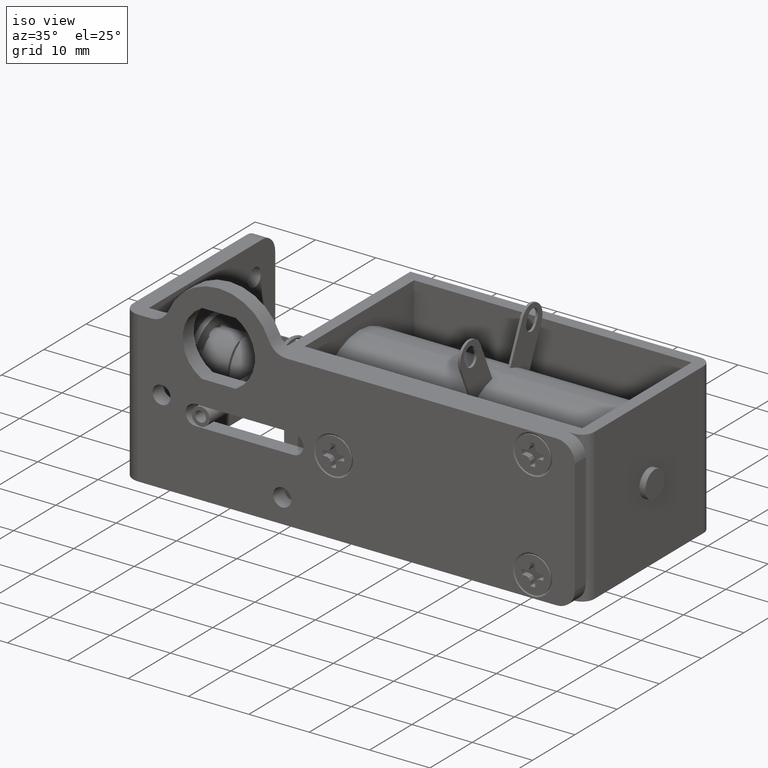
[diagram: clean part render]
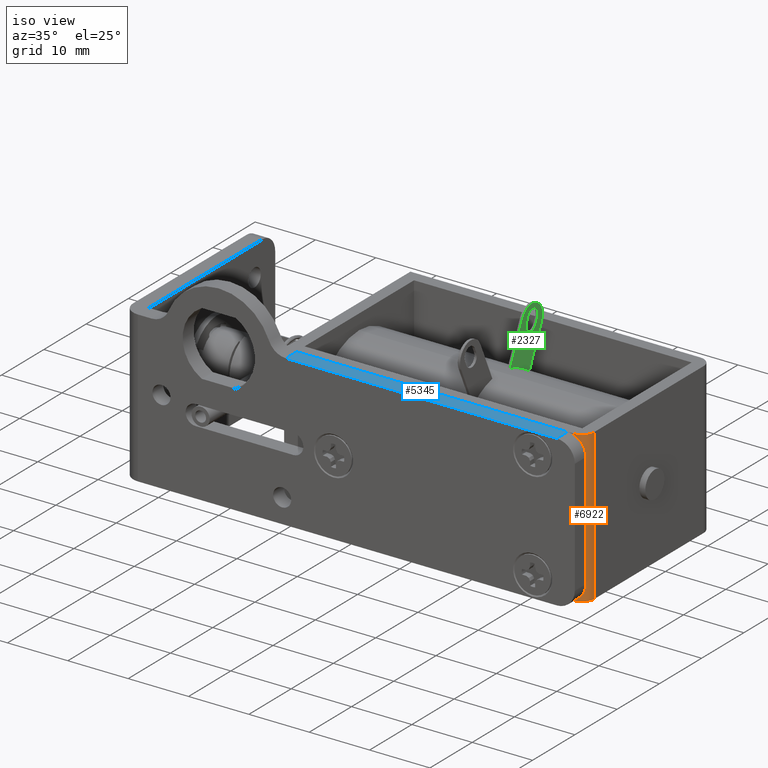
[diagram: same view with three faces highlighted in distinct colors, each labeled with its STEP entity id]
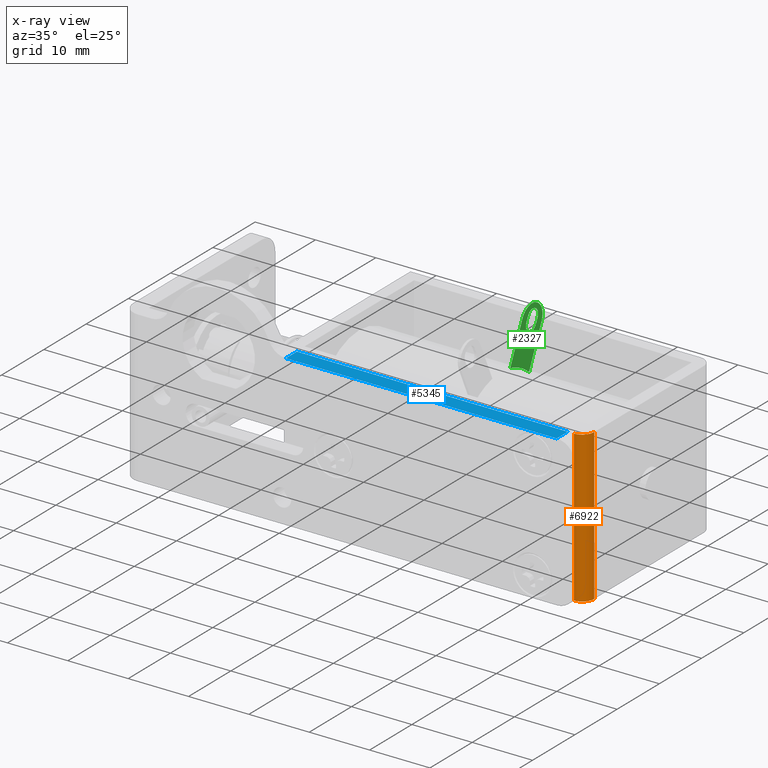
[diagram: x-ray of the same camera — body ghosted, the three highlighted faces saturated]
A machine part, iso view with three faces highlighted in distinct colors.
The next image is the same camera in x-ray (body ghosted, the three faces saturated) — at least one of them is partly hidden behind the body in this view.
Their STEP definitions:

[orange] entity #6922 — the highlighted cylindrical surface (edge-blend (fillet) strip) has radius 2 mm, axis along (0, 0, 1).
#251 = EDGE_CURVE ( 'NONE', #324, #4198, #955, .T. ) ;
#324 = VERTEX_POINT ( 'NONE', #1913 ) ;
#348 = CARTESIAN_POINT ( 'NONE',  ( 59.00000000000000000, 4.600000000000109800, -23.50000000000000000 ) ) ;
#844 = CARTESIAN_POINT ( 'NONE',  ( 59.00000000000000000, 4.600000000000109800, -998.5000000000000000 ) ) ;
#849 = VECTOR ( 'NONE', #4538, 1000.000000000000000 ) ;
#955 = LINE ( 'NONE', #4747, #7416 ) ;
#979 = EDGE_CURVE ( 'NONE', #5466, #2408, #2476, .T. ) ;
#1913 = CARTESIAN_POINT ( 'NONE',  ( 57.00000000000000000, 2.600000000000110200, -23.50000000000000000 ) ) ;
#2217 = DIRECTION ( 'NONE',  ( -0.0000000000000000000, -0.0000000000000000000, 1.000000000000000000 ) ) ;
#2231 = EDGE_LOOP ( 'NONE', ( #3943, #3107, #4294, #5773 ) ) ;
#2408 = VERTEX_POINT ( 'NONE', #4467 ) ;
#2476 = LINE ( 'NONE', #844, #849 ) ;
#3007 = AXIS2_PLACEMENT_3D ( 'NONE', #6852, #3208, #7455 ) ;
#3107 = ORIENTED_EDGE ( 'NONE', *, *, #251, .F. ) ;
#3208 = DIRECTION ( 'NONE',  ( -0.0000000000000000000, -0.0000000000000000000, 1.000000000000000000 ) ) ;
#3283 = CIRCLE ( 'NONE', #3007, 2.000000000000001800 ) ;
#3943 = ORIENTED_EDGE ( 'NONE', *, *, #4614, .F. ) ;
#4197 = DIRECTION ( 'NONE',  ( 0.0000000000000000000, 0.0000000000000000000, 1.000000000000000000 ) ) ;
#4198 = VERTEX_POINT ( 'NONE', #5236 ) ;
#4294 = ORIENTED_EDGE ( 'NONE', *, *, #6889, .T. ) ;
#4467 = CARTESIAN_POINT ( 'NONE',  ( 59.00000000000000000, 4.600000000000109800, 1.499999999999946000 ) ) ;
#4538 = DIRECTION ( 'NONE',  ( 0.0000000000000000000, 0.0000000000000000000, 1.000000000000000000 ) ) ;
#4554 = AXIS2_PLACEMENT_3D ( 'NONE', #5869, #2217, #6469 ) ;
#4614 = EDGE_CURVE ( 'NONE', #4198, #2408, #6671, .T. ) ;
#4747 = CARTESIAN_POINT ( 'NONE',  ( 57.00000000000000000, 2.600000000000110200, -998.5000000000000000 ) ) ;
#5068 = CARTESIAN_POINT ( 'NONE',  ( 57.00000000000000000, 4.600000000000109800, -998.5000000000000000 ) ) ;
#5236 = CARTESIAN_POINT ( 'NONE',  ( 57.00000000000000000, 2.600000000000110200, 1.499999999999946000 ) ) ;
#5466 = VERTEX_POINT ( 'NONE', #348 ) ;
#5773 = ORIENTED_EDGE ( 'NONE', *, *, #979, .T. ) ;
#5868 = AXIS2_PLACEMENT_3D ( 'NONE', #5068, #6879, #6267 ) ;
#5869 = CARTESIAN_POINT ( 'NONE',  ( 57.00000000000000000, 4.600000000000109800, 1.499999999999946000 ) ) ;
#5965 = CYLINDRICAL_SURFACE ( 'NONE', #5868, 2.000000000000001800 ) ;
#6148 = FACE_OUTER_BOUND ( 'NONE', #2231, .T. ) ;
#6267 = DIRECTION ( 'NONE',  ( 1.000000000000000000, 0.0000000000000000000, 0.0000000000000000000 ) ) ;
#6469 = DIRECTION ( 'NONE',  ( -1.000000000000000000, 0.0000000000000000000, 0.0000000000000000000 ) ) ;
#6671 = CIRCLE ( 'NONE', #4554, 2.000000000000001800 ) ;
#6852 = CARTESIAN_POINT ( 'NONE',  ( 57.00000000000000000, 4.600000000000109800, -23.50000000000000000 ) ) ;
#6879 = DIRECTION ( 'NONE',  ( 0.0000000000000000000, 0.0000000000000000000, 1.000000000000000000 ) ) ;
#6889 = EDGE_CURVE ( 'NONE', #324, #5466, #3283, .T. ) ;
#6922 = ADVANCED_FACE ( 'NONE', ( #6148 ), #5965, .T. ) ;
#7416 = VECTOR ( 'NONE', #4197, 1000.000000000000000 ) ;
#7455 = DIRECTION ( 'NONE',  ( -1.000000000000000000, 0.0000000000000000000, 0.0000000000000000000 ) ) ;

[blue] entity #5345 — the highlighted planar face has unit normal (0, 0, -1).
#265 = DIRECTION ( 'NONE',  ( -1.000000000000000000, 0.0000000000000000000, 0.0000000000000000000 ) ) ;
#344 = CARTESIAN_POINT ( 'NONE',  ( 11.12429784292036000, 2.600000000000044900, 1.500000000000000000 ) ) ;
#524 = ORIENTED_EDGE ( 'NONE', *, *, #778, .T. ) ;
#747 = VERTEX_POINT ( 'NONE', #3307 ) ;
#778 = EDGE_CURVE ( 'NONE', #3939, #7012, #5819, .T. ) ;
#995 = LINE ( 'NONE', #1425, #7277 ) ;
#1393 = VERTEX_POINT ( 'NONE', #344 ) ;
#1413 = DIRECTION ( 'NONE',  ( 0.0000000000000000000, -1.000000000000000000, 0.0000000000000000000 ) ) ;
#1425 = CARTESIAN_POINT ( 'NONE',  ( 0.0000000000000000000, 2.600000000000000100, 1.500000000000000000 ) ) ;
#1521 = CARTESIAN_POINT ( 'NONE',  ( 56.00000000000000000, 0.0000000000000000000, 1.500000000000000000 ) ) ;
#2184 = DIRECTION ( 'NONE',  ( 0.0000000000000000000, -1.000000000000000000, 0.0000000000000000000 ) ) ;
#2213 = VECTOR ( 'NONE', #2184, 1000.000000000000000 ) ;
#2365 = ORIENTED_EDGE ( 'NONE', *, *, #7807, .T. ) ;
#2414 = VECTOR ( 'NONE', #1413, 1000.000000000000000 ) ;
#2620 = EDGE_CURVE ( 'NONE', #747, #7012, #3826, .T. ) ;
#2786 = LINE ( 'NONE', #7471, #2414 ) ;
#2860 = AXIS2_PLACEMENT_3D ( 'NONE', #3316, #3940, #265 ) ;
#3307 = CARTESIAN_POINT ( 'NONE',  ( 56.00000000000000000, 2.600000000000044900, 1.500000000000000000 ) ) ;
#3316 = CARTESIAN_POINT ( 'NONE',  ( 11.12429800000000000, 1000.000000000000000, 1.500000000000000000 ) ) ;
#3382 = CARTESIAN_POINT ( 'NONE',  ( 56.00000000000000000, 1000.000000000000000, 1.500000000000000000 ) ) ;
#3515 = FACE_OUTER_BOUND ( 'NONE', #5995, .T. ) ;
#3826 = LINE ( 'NONE', #3382, #2213 ) ;
#3939 = VERTEX_POINT ( 'NONE', #7366 ) ;
#3940 = DIRECTION ( 'NONE',  ( 0.0000000000000000000, 0.0000000000000000000, -1.000000000000000000 ) ) ;
#4211 = VECTOR ( 'NONE', #4790, 1000.000000000000000 ) ;
#4790 = DIRECTION ( 'NONE',  ( 1.000000000000000000, -0.0000000000000000000, -0.0000000000000000000 ) ) ;
#5345 = ADVANCED_FACE ( 'NONE', ( #3515 ), #7526, .F. ) ;
#5419 = ORIENTED_EDGE ( 'NONE', *, *, #2620, .F. ) ;
#5819 = LINE ( 'NONE', #6512, #4211 ) ;
#5995 = EDGE_LOOP ( 'NONE', ( #5419, #6297, #2365, #524 ) ) ;
#6281 = DIRECTION ( 'NONE',  ( 1.000000000000000000, -0.0000000000000000000, -0.0000000000000000000 ) ) ;
#6297 = ORIENTED_EDGE ( 'NONE', *, *, #7303, .F. ) ;
#6512 = CARTESIAN_POINT ( 'NONE',  ( 0.0000000000000000000, 0.0000000000000000000, 1.500000000000000000 ) ) ;
#7012 = VERTEX_POINT ( 'NONE', #1521 ) ;
#7277 = VECTOR ( 'NONE', #6281, 1000.000000000000000 ) ;
#7303 = EDGE_CURVE ( 'NONE', #1393, #747, #995, .T. ) ;
#7366 = CARTESIAN_POINT ( 'NONE',  ( 11.12429784292036000, 0.0000000000000000000, 1.500000000000000000 ) ) ;
#7471 = CARTESIAN_POINT ( 'NONE',  ( 11.12429784292036000, 1000.000000000000000, 1.500000000000000000 ) ) ;
#7526 = PLANE ( 'NONE',  #2860 ) ;
#7807 = EDGE_CURVE ( 'NONE', #1393, #3939, #2786, .T. ) ;

[green] entity #2327 — the highlighted planar face has unit normal (1, 0, 0).
#56 = CARTESIAN_POINT ( 'NONE',  ( 34.50000000000000000, 22.57607329909425100, 5.038873119734969200 ) ) ;
#337 = CARTESIAN_POINT ( 'NONE',  ( 34.50000000000000000, 16.77314178268235200, -7.662951927106020000 ) ) ;
#497 = FACE_OUTER_BOUND ( 'NONE', #4799, .T. ) ;
#556 = VERTEX_POINT ( 'NONE', #5235 ) ;
#594 = EDGE_CURVE ( 'NONE', #6638, #3797, #7136, .T. ) ;
#596 = CARTESIAN_POINT ( 'NONE',  ( 34.50000000000000000, 23.52451150691430100, 4.106743506909665200 ) ) ;
#749 = CARTESIAN_POINT ( 'NONE',  ( 34.50000000000000000, 0.0000000000000000000, 0.0000000000000000000 ) ) ;
#826 = CARTESIAN_POINT ( 'NONE',  ( 34.50000000000000000, 17.91011781782450300, -8.182388501901611400 ) ) ;
#941 = CARTESIAN_POINT ( 'NONE',  ( 34.50000000000000000, 21.32117879336589900, -9.740556133334170100 ) ) ;
#1041 = AXIS2_PLACEMENT_3D ( 'NONE', #4640, #2212, #1611 ) ;
#1045 = DIRECTION ( 'NONE',  ( 1.000000000000000000, -0.0000000000000000000, -0.0000000000000000000 ) ) ;
#1330 = LINE ( 'NONE', #941, #4575 ) ;
#1383 = VERTEX_POINT ( 'NONE', #6347 ) ;
#1581 = DIRECTION ( 'NONE',  ( 0.0000000000000000000, -0.4155385560214137600, -0.9095755650080086200 ) ) ;
#1611 = DIRECTION ( 'NONE',  ( 0.0000000000000000000, 0.0000000000000000000, 1.000000000000000000 ) ) ;
#1679 = CIRCLE ( 'NONE', #5166, 9.999999999999998200 ) ;
#1784 = CARTESIAN_POINT ( 'NONE',  ( 34.50000000000000000, 17.50000000000000000, -11.00000000000000000 ) ) ;
#1843 = CARTESIAN_POINT ( 'NONE',  ( 34.50000000000000000, 24.66301800000004700, 3.590697999999999700 ) ) ;
#1844 = LINE ( 'NONE', #337, #6490 ) ;
#2124 = FACE_BOUND ( 'NONE', #3891, .T. ) ;
#2147 = CIRCLE ( 'NONE', #3672, 1.250000000000000200 ) ;
#2212 = DIRECTION ( 'NONE',  ( 1.000000000000000000, -0.0000000000000000000, -0.0000000000000000000 ) ) ;
#2327 = ADVANCED_FACE ( 'NONE', ( #497, #2124 ), #6813, .T. ) ;
#2369 = DIRECTION ( 'NONE',  ( 0.0000000000000000000, 0.0000000000000000000, -1.000000000000000000 ) ) ;
#2435 = DIRECTION ( 'NONE',  ( 0.0000000000000000000, 0.0000000000000000000, 1.000000000000000000 ) ) ;
#2475 = EDGE_CURVE ( 'NONE', #6638, #1383, #7607, .T. ) ;
#2546 = CARTESIAN_POINT ( 'NONE',  ( 34.50000000000000000, 24.85000000000000100, 4.000000000000000000 ) ) ;
#2548 = ORIENTED_EDGE ( 'NONE', *, *, #3124, .F. ) ;
#2578 = DIRECTION ( 'NONE',  ( 0.0000000000000000000, 1.000000000000000000, 0.0000000000000000000 ) ) ;
#2839 = ORIENTED_EDGE ( 'NONE', *, *, #5439, .F. ) ;
#3124 = EDGE_CURVE ( 'NONE', #7129, #556, #3151, .T. ) ;
#3132 = LINE ( 'NONE', #3996, #7575 ) ;
#3151 = LINE ( 'NONE', #5607, #4594 ) ;
#3160 = DIRECTION ( 'NONE',  ( 0.0000000000000000000, 0.0000000000000000000, -1.000000000000000000 ) ) ;
#3330 = EDGE_CURVE ( 'NONE', #4339, #7646, #1844, .T. ) ;
#3385 = DIRECTION ( 'NONE',  ( 0.0000000000000000000, 0.4155457925058164100, 0.9095722589935958400 ) ) ;
#3403 = VERTEX_POINT ( 'NONE', #5327 ) ;
#3672 = AXIS2_PLACEMENT_3D ( 'NONE', #1843, #6098, #2435 ) ;
#3714 = CARTESIAN_POINT ( 'NONE',  ( 34.50000000000000000, 24.17216972163850000, -3.500000000000000000 ) ) ;
#3797 = VERTEX_POINT ( 'NONE', #6042 ) ;
#3883 = ORIENTED_EDGE ( 'NONE', *, *, #7056, .F. ) ;
#3891 = EDGE_LOOP ( 'NONE', ( #4232, #7742, #3883, #6238, #7190 ) ) ;
#3893 = DIRECTION ( 'NONE',  ( -0.0000000000000000000, 0.4155457690008624300, 0.9095722697320328700 ) ) ;
#3996 = CARTESIAN_POINT ( 'NONE',  ( 34.50000000000000000, 20.18389546384494800, -9.221351979968629200 ) ) ;
#4082 = CARTESIAN_POINT ( 'NONE',  ( 34.50000000000000000, 19.70474723163360100, -1.246073116708210000 ) ) ;
#4232 = ORIENTED_EDGE ( 'NONE', *, *, #6449, .F. ) ;
#4339 = VERTEX_POINT ( 'NONE', #4082 ) ;
#4575 = VECTOR ( 'NONE', #1581, 1000.000000000000200 ) ;
#4594 = VECTOR ( 'NONE', #6816, 1000.000000000000000 ) ;
#4607 = DIRECTION ( 'NONE',  ( -0.0000000000000000000, -0.4155520685379459100, -0.9095693917089747700 ) ) ;
#4640 = CARTESIAN_POINT ( 'NONE',  ( 34.50000000000000000, 24.66301800000004700, 3.590697999999999700 ) ) ;
#4708 = CARTESIAN_POINT ( 'NONE',  ( 34.50000000000000000, 25.03701100000000000, 4.409301000000200000 ) ) ;
#4799 = EDGE_LOOP ( 'NONE', ( #5169, #2548, #2839, #7232, #6062 ) ) ;
#4812 = CARTESIAN_POINT ( 'NONE',  ( 34.50000000000000000, 26.17397437765049900, 3.889864499663980200 ) ) ;
#5166 = AXIS2_PLACEMENT_3D ( 'NONE', #1784, #6030, #2369 ) ;
#5169 = ORIENTED_EDGE ( 'NONE', *, *, #7541, .F. ) ;
#5180 = VERTEX_POINT ( 'NONE', #4812 ) ;
#5235 = CARTESIAN_POINT ( 'NONE',  ( 34.50000000000000000, 24.11437827766135200, -3.500000000000000000 ) ) ;
#5327 = CARTESIAN_POINT ( 'NONE',  ( 34.50000000000000000, 25.79998126885999800, 3.071261261538739800 ) ) ;
#5328 = DIRECTION ( 'NONE',  ( 0.0000000000000000000, 0.0000000000000000000, 1.000000000000000000 ) ) ;
#5407 = EDGE_CURVE ( 'NONE', #5180, #3403, #3132, .T. ) ;
#5439 = EDGE_CURVE ( 'NONE', #7167, #7129, #1330, .T. ) ;
#5607 = CARTESIAN_POINT ( 'NONE',  ( 34.50000000000000000, 2.761219124541234900E-016, -3.500000000000000000 ) ) ;
#5855 = AXIS2_PLACEMENT_3D ( 'NONE', #749, #6229, #2578 ) ;
#5972 = CIRCLE ( 'NONE', #6965, 1.250000000000000200 ) ;
#6030 = DIRECTION ( 'NONE',  ( 1.000000000000000000, 0.0000000000000000000, 0.0000000000000000000 ) ) ;
#6036 = VECTOR ( 'NONE', #3893, 1000.000000000000100 ) ;
#6042 = CARTESIAN_POINT ( 'NONE',  ( 34.50000000000000000, 24.66301800000004700, 2.340697999999999700 ) ) ;
#6062 = ORIENTED_EDGE ( 'NONE', *, *, #3330, .F. ) ;
#6098 = DIRECTION ( 'NONE',  ( 1.000000000000000000, -0.0000000000000000000, -0.0000000000000000000 ) ) ;
#6164 = CARTESIAN_POINT ( 'NONE',  ( 34.50000000000000000, 27.12392675530104600, 2.961126999327565300 ) ) ;
#6229 = DIRECTION ( 'NONE',  ( 1.000000000000000000, 0.0000000000000000000, 0.0000000000000000000 ) ) ;
#6238 = ORIENTED_EDGE ( 'NONE', *, *, #594, .F. ) ;
#6347 = CARTESIAN_POINT ( 'NONE',  ( 34.50000000000000000, 23.90004799999989900, 4.928741000000200300 ) ) ;
#6449 = EDGE_CURVE ( 'NONE', #5180, #1383, #5972, .T. ) ;
#6490 = VECTOR ( 'NONE', #3385, 999.9999999999998900 ) ;
#6632 = AXIS2_PLACEMENT_3D ( 'NONE', #2546, #6803, #3160 ) ;
#6638 = VERTEX_POINT ( 'NONE', #596 ) ;
#6803 = DIRECTION ( 'NONE',  ( 1.000000000000000000, 0.0000000000000000000, 0.0000000000000000000 ) ) ;
#6813 = PLANE ( 'NONE',  #5855 ) ;
#6816 = DIRECTION ( 'NONE',  ( 0.0000000000000000000, -1.000000000000000000, -7.889197498689239900E-017 ) ) ;
#6965 = AXIS2_PLACEMENT_3D ( 'NONE', #4708, #1045, #5328 ) ;
#7056 = EDGE_CURVE ( 'NONE', #3797, #3403, #2147, .T. ) ;
#7129 = VERTEX_POINT ( 'NONE', #3714 ) ;
#7136 = CIRCLE ( 'NONE', #1041, 1.250000000000000200 ) ;
#7167 = VERTEX_POINT ( 'NONE', #6164 ) ;
#7190 = ORIENTED_EDGE ( 'NONE', *, *, #2475, .T. ) ;
#7232 = ORIENTED_EDGE ( 'NONE', *, *, #7688, .T. ) ;
#7541 = EDGE_CURVE ( 'NONE', #556, #4339, #1679, .T. ) ;
#7575 = VECTOR ( 'NONE', #4607, 1000.000000000000000 ) ;
#7607 = LINE ( 'NONE', #826, #6036 ) ;
#7646 = VERTEX_POINT ( 'NONE', #56 ) ;
#7688 = EDGE_CURVE ( 'NONE', #7167, #7646, #7824, .T. ) ;
#7742 = ORIENTED_EDGE ( 'NONE', *, *, #5407, .T. ) ;
#7824 = CIRCLE ( 'NONE', #6632, 2.500000000000000000 ) ;